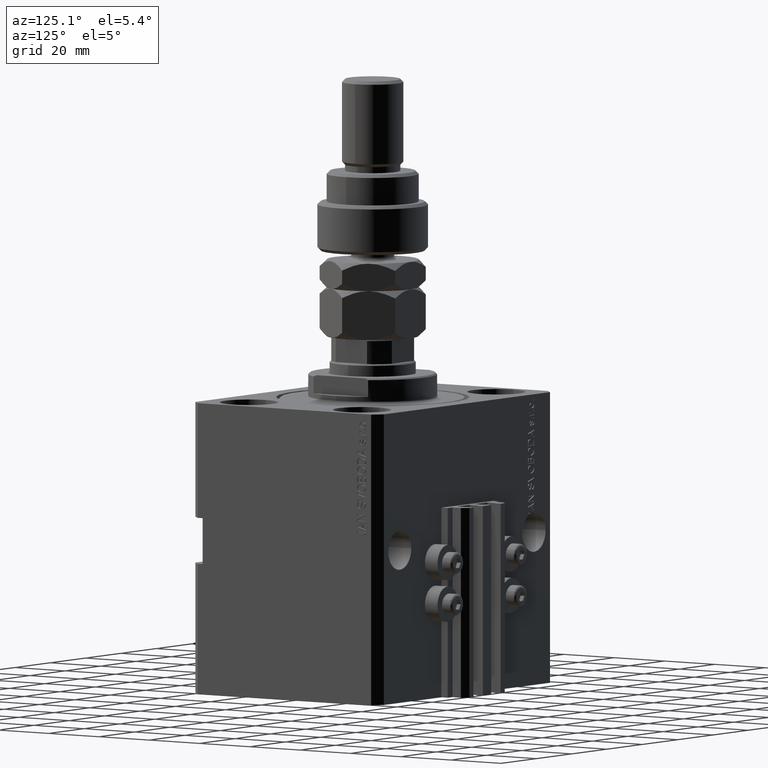
[diagram: clean part render]
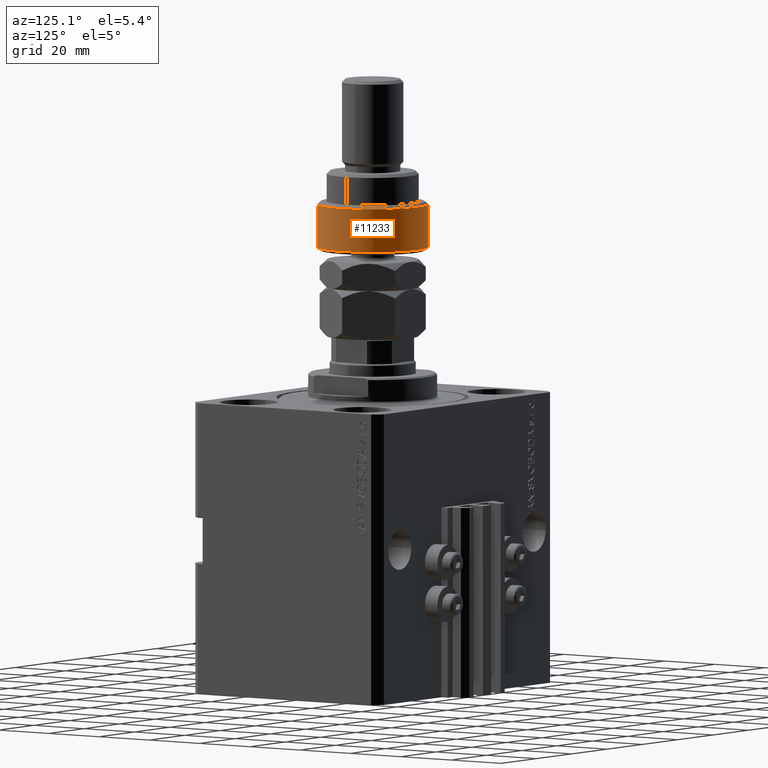
[diagram: same view with one face highlighted and labeled with its STEP entity id]
A machine part, auxiliary view. The second image highlights one B-rep face of the part: STEP entity #11233.
In plain terms, the highlighted cylindrical surface (partial cylindrical patch) has radius 18 mm, axis along (-0, -0, -1).
Its self-contained STEP definition (entity closure, byte-faithful):
#1069 = VECTOR ( 'NONE', #11383, 1000.000000000000000 ) ;
#2574 = VERTEX_POINT ( 'NONE', #18555 ) ;
#3250 = EDGE_CURVE ( 'NONE', #8484, #2574, #21170, .T. ) ;
#3531 = AXIS2_PLACEMENT_3D ( 'NONE', #39366, #7704, #11289 ) ;
#3827 = EDGE_CURVE ( 'NONE', #2574, #23449, #44556, .T. ) ;
#4299 = DIRECTION ( 'NONE',  ( -0.000000000000000000, -0.000000000000000000, -1.000000000000000000 ) ) ;
#4545 = CYLINDRICAL_SURFACE ( 'NONE', #49070, 18.00000000000000000 ) ;
#4938 = DIRECTION ( 'NONE',  ( -0.000000000000000000, -0.000000000000000000, 1.000000000000000000 ) ) ;
#5685 = VECTOR ( 'NONE', #40731, 1000.000000000000000 ) ;
#7704 = DIRECTION ( 'NONE',  ( -0.000000000000000000, -0.000000000000000000, 1.000000000000000000 ) ) ;
#8484 = VERTEX_POINT ( 'NONE', #21121 ) ;
#9340 = VERTEX_POINT ( 'NONE', #30368 ) ;
#11233 = ADVANCED_FACE ( 'NONE', ( #31117 ), #4545, .T. ) ;
#11289 = DIRECTION ( 'NONE',  ( 1.000000000000000000, 0.000000000000000000, 0.000000000000000000 ) ) ;
#11383 = DIRECTION ( 'NONE',  ( -0.000000000000000000, -0.000000000000000000, -1.000000000000000000 ) ) ;
#11549 = ORIENTED_EDGE ( 'NONE', *, *, #3827, .T. ) ;
#12456 = DIRECTION ( 'NONE',  ( -1.000000000000000000, 0.000000000000000000, 0.000000000000000000 ) ) ;
#13005 = EDGE_CURVE ( 'NONE', #23449, #9340, #40190, .T. ) ;
#14784 = DIRECTION ( 'NONE',  ( 1.000000000000000000, 0.000000000000000000, 0.000000000000000000 ) ) ;
#16274 = EDGE_LOOP ( 'NONE', ( #41173, #21909, #11549, #49620, #35148 ) ) ;
#18555 = CARTESIAN_POINT ( 'NONE',  ( -16.36306817195357155, -7.500000000000000000, 14.99999999999999645 ) ) ;
#18625 = CARTESIAN_POINT ( 'NONE',  ( 0.000000000000000000, 0.000000000000000000, 14.99999999999999645 ) ) ;
#19800 = LINE ( 'NONE', #34872, #1069 ) ;
#20819 = CARTESIAN_POINT ( 'NONE',  ( -16.36306817195357155, -7.500000000000000000, 17.50000000000000000 ) ) ;
#21121 = CARTESIAN_POINT ( 'NONE',  ( -16.36306817195357155, 7.500000000000000000, 14.99999999999999645 ) ) ;
#21170 = CIRCLE ( 'NONE', #28508, 18.00000000000000000 ) ;
#21909 = ORIENTED_EDGE ( 'NONE', *, *, #3250, .T. ) ;
#23449 = VERTEX_POINT ( 'NONE', #33610 ) ;
#24610 = CARTESIAN_POINT ( 'NONE',  ( 0.000000000000000000, 0.000000000000000000, 1.000000000000011324 ) ) ;
#28508 = AXIS2_PLACEMENT_3D ( 'NONE', #18625, #30883, #14784 ) ;
#29778 = EDGE_CURVE ( 'NONE', #9340, #31039, #49685, .T. ) ;
#30368 = CARTESIAN_POINT ( 'NONE',  ( 18.00000000000000000, 0.000000000000000000, 1.000000000000011324 ) ) ;
#30598 = CARTESIAN_POINT ( 'NONE',  ( -16.36306817195357155, 7.500000000000000000, 1.000000000000011324 ) ) ;
#30883 = DIRECTION ( 'NONE',  ( 0.000000000000000000, 0.000000000000000000, -1.000000000000000000 ) ) ;
#31039 = VERTEX_POINT ( 'NONE', #30598 ) ;
#31117 = FACE_OUTER_BOUND ( 'NONE', #16274, .T. ) ;
#33610 = CARTESIAN_POINT ( 'NONE',  ( -16.36306817195357155, -7.500000000000000000, 1.000000000000011324 ) ) ;
#34872 = CARTESIAN_POINT ( 'NONE',  ( -16.36306817195357155, 7.500000000000000000, 17.50000000000000000 ) ) ;
#35148 = ORIENTED_EDGE ( 'NONE', *, *, #29778, .T. ) ;
#35203 = CARTESIAN_POINT ( 'NONE',  ( 0.000000000000000000, 0.000000000000000000, 16.00000000000000000 ) ) ;
#39347 = EDGE_CURVE ( 'NONE', #8484, #31039, #19800, .T. ) ;
#39366 = CARTESIAN_POINT ( 'NONE',  ( 0.000000000000000000, 0.000000000000000000, 1.000000000000011324 ) ) ;
#40190 = CIRCLE ( 'NONE', #3531, 18.00000000000000000 ) ;
#40690 = AXIS2_PLACEMENT_3D ( 'NONE', #24610, #4938, #48332 ) ;
#40731 = DIRECTION ( 'NONE',  ( -0.000000000000000000, -0.000000000000000000, -1.000000000000000000 ) ) ;
#41173 = ORIENTED_EDGE ( 'NONE', *, *, #39347, .F. ) ;
#44556 = LINE ( 'NONE', #20819, #5685 ) ;
#48332 = DIRECTION ( 'NONE',  ( 1.000000000000000000, 0.000000000000000000, 0.000000000000000000 ) ) ;
#49070 = AXIS2_PLACEMENT_3D ( 'NONE', #35203, #4299, #12456 ) ;
#49620 = ORIENTED_EDGE ( 'NONE', *, *, #13005, .T. ) ;
#49685 = CIRCLE ( 'NONE', #40690, 18.00000000000000000 ) ;